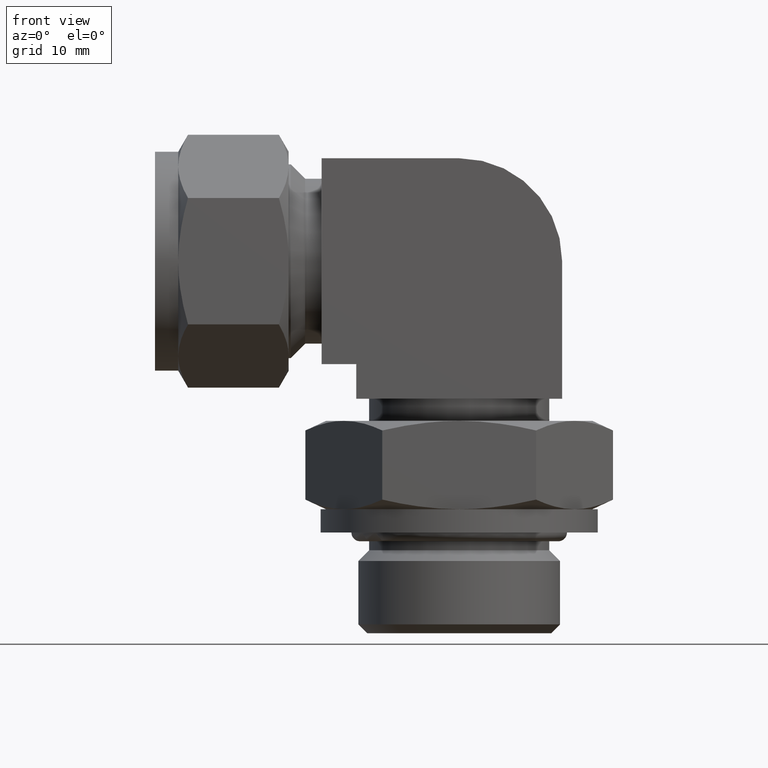
[diagram: clean part render]
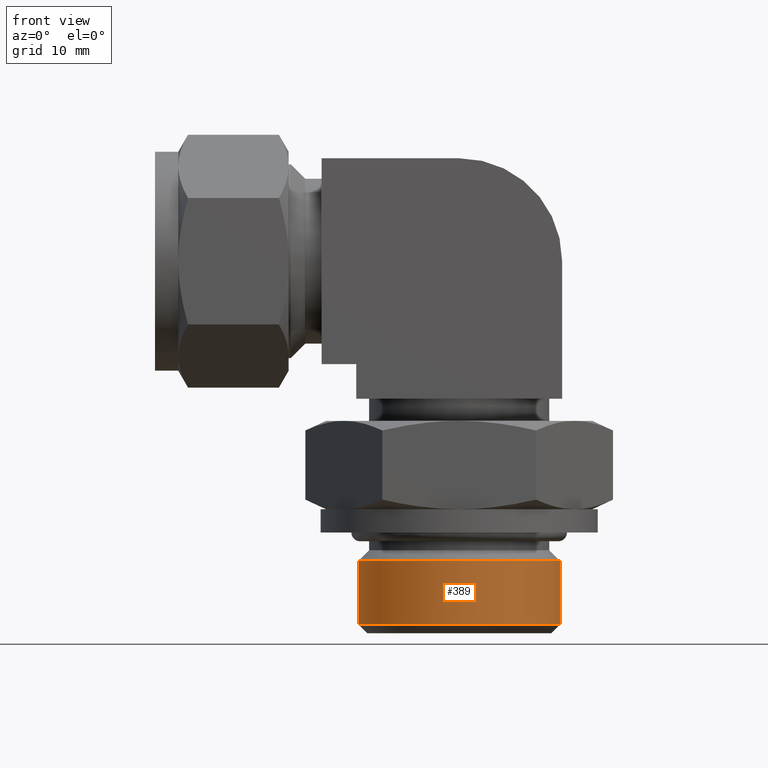
[diagram: same view with one face highlighted and labeled with its STEP entity id]
A machine part, front view. The second image highlights one B-rep face of the part: STEP entity #389.
In plain terms, the highlighted cylindrical surface (partial cylindrical patch) has radius 13.2205 mm, axis along (-0, 0, 1).
Its self-contained STEP definition (entity closure, byte-faithful):
#28 = AXIS2_PLACEMENT_3D ( 'NONE', #2135, #1138, #2101 ) ;
#57 = VERTEX_POINT ( 'NONE', #2403 ) ;
#116 = CARTESIAN_POINT ( 'NONE',  ( 53.09850000000000136, -1.618990830070870035E-15, -39.29350000000000165 ) ) ;
#183 = VERTEX_POINT ( 'NONE', #116 ) ;
#234 = DIRECTION ( 'NONE',  ( -1.110223024625159992E-16, 0.000000000000000000, 1.000000000000000000 ) ) ;
#255 = CARTESIAN_POINT ( 'NONE',  ( 26.65749999999999886, 1.810702954761769803E-15, -47.60600000000000165 ) ) ;
#315 = DIRECTION ( 'NONE',  ( -1.000000000000000000, 0.000000000000000000, 0.000000000000000000 ) ) ;
#389 = ADVANCED_FACE ( 'NONE', ( #875 ), #2410, .T. ) ;
#605 = EDGE_CURVE ( 'NONE', #2072, #57, #1426, .T. ) ;
#659 = AXIS2_PLACEMENT_3D ( 'NONE', #1577, #234, #1778 ) ;
#693 = CARTESIAN_POINT ( 'NONE',  ( 26.65749999999999886, 1.301725938954340114E-15, -39.29350000000000165 ) ) ;
#875 = FACE_OUTER_BOUND ( 'NONE', #1583, .T. ) ;
#877 = LINE ( 'NONE', #1068, #2080 ) ;
#931 = VECTOR ( 'NONE', #2019, 1000.000000000000000 ) ;
#937 = ORIENTED_EDGE ( 'NONE', *, *, #605, .T. ) ;
#1002 = CIRCLE ( 'NONE', #28, 13.22049999999999947 ) ;
#1068 = CARTESIAN_POINT ( 'NONE',  ( 26.65749999999999886, 1.618990830070870035E-15, -43.44975000000000165 ) ) ;
#1105 = EDGE_CURVE ( 'NONE', #2072, #1631, #877, .T. ) ;
#1138 = DIRECTION ( 'NONE',  ( -1.110223024625159992E-16, 0.000000000000000000, 1.000000000000000000 ) ) ;
#1282 = CARTESIAN_POINT ( 'NONE',  ( 39.87800000000000011, 0.000000000000000000, -43.44975000000000165 ) ) ;
#1426 = CIRCLE ( 'NONE', #659, 13.22049999999999947 ) ;
#1480 = DIRECTION ( 'NONE',  ( -1.110223024625159992E-16, 0.000000000000000000, 1.000000000000000000 ) ) ;
#1577 = CARTESIAN_POINT ( 'NONE',  ( 39.87800000000000011, 0.000000000000000000, -47.60600000000000165 ) ) ;
#1583 = EDGE_LOOP ( 'NONE', ( #1784, #937, #2158, #1725 ) ) ;
#1631 = VERTEX_POINT ( 'NONE', #693 ) ;
#1725 = ORIENTED_EDGE ( 'NONE', *, *, #1924, .F. ) ;
#1749 = AXIS2_PLACEMENT_3D ( 'NONE', #1282, #1480, #315 ) ;
#1777 = LINE ( 'NONE', #2005, #931 ) ;
#1778 = DIRECTION ( 'NONE',  ( -1.000000000000000000, 0.000000000000000000, 0.000000000000000000 ) ) ;
#1784 = ORIENTED_EDGE ( 'NONE', *, *, #1105, .F. ) ;
#1924 = EDGE_CURVE ( 'NONE', #1631, #183, #1002, .T. ) ;
#2005 = CARTESIAN_POINT ( 'NONE',  ( 53.09850000000000136, -1.618990830070870035E-15, -43.44975000000000165 ) ) ;
#2019 = DIRECTION ( 'NONE',  ( 1.110223024625159992E-16, 0.000000000000000000, -1.000000000000000000 ) ) ;
#2072 = VERTEX_POINT ( 'NONE', #255 ) ;
#2080 = VECTOR ( 'NONE', #2222, 1000.000000000000000 ) ;
#2101 = DIRECTION ( 'NONE',  ( -1.000000000000000000, 0.000000000000000000, 0.000000000000000000 ) ) ;
#2113 = EDGE_CURVE ( 'NONE', #183, #57, #1777, .T. ) ;
#2135 = CARTESIAN_POINT ( 'NONE',  ( 39.87800000000000011, 0.000000000000000000, -39.29350000000000165 ) ) ;
#2158 = ORIENTED_EDGE ( 'NONE', *, *, #2113, .F. ) ;
#2222 = DIRECTION ( 'NONE',  ( -1.110223024625159992E-16, 0.000000000000000000, 1.000000000000000000 ) ) ;
#2403 = CARTESIAN_POINT ( 'NONE',  ( 53.09850000000000136, -1.618990830070870035E-15, -47.60600000000000165 ) ) ;
#2410 = CYLINDRICAL_SURFACE ( 'NONE', #1749, 13.22049999999999947 ) ;